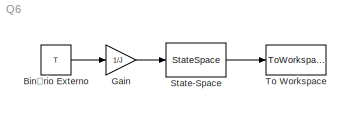
MODEL Q6
KIND model
BLOCK [Constant] Binário Externo
  SID = 2
  Value = T
BLOCK [Gain] Gain
  Gain = 1/J
  OutDataTypeStr = Inherit: Inherit via internal rule
  ParamDataTypeStr = Inherit: Inherit via internal rule
  SID = 3
  SaturateOnIntegerOverflow = off
BLOCK [StateSpace] State-Space
  A = [0 1; ((g*((m*l)+((M*L)/2)))-k)/J -(beta/J)]
  B = [0; 1/J]
  C = [1 0; 0 1]
  ContinuousStateAttributes = 'Tethas'
  D = [0; 0]
  Ports = [1, 1]
  SID = 4
  X0 = x0
BLOCK [ToWorkspace] To Workspace
  FixptAsFi = on
  MaxDataPoints = inf
  Ports = [1]
  SID = 5
  SampleTime = -1
  Save2DSignal = 3-D array (concatenate along third dimension)
  VariableName = y
LINE Binário Externo:1 -> Gain:1
LINE Gain:1 -> State-Space:1
LINE State-Space:1 -> To Workspace:1
